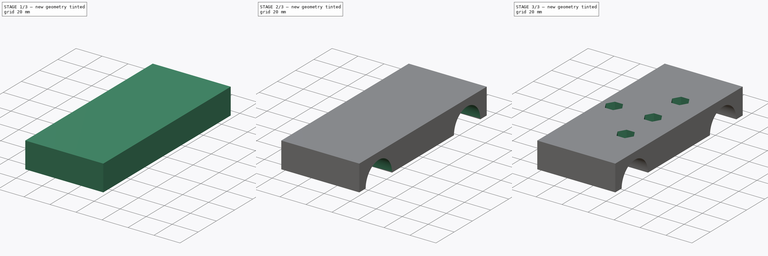
[diagram: build sequence overview — one tinted view per stage of 3, left to right]
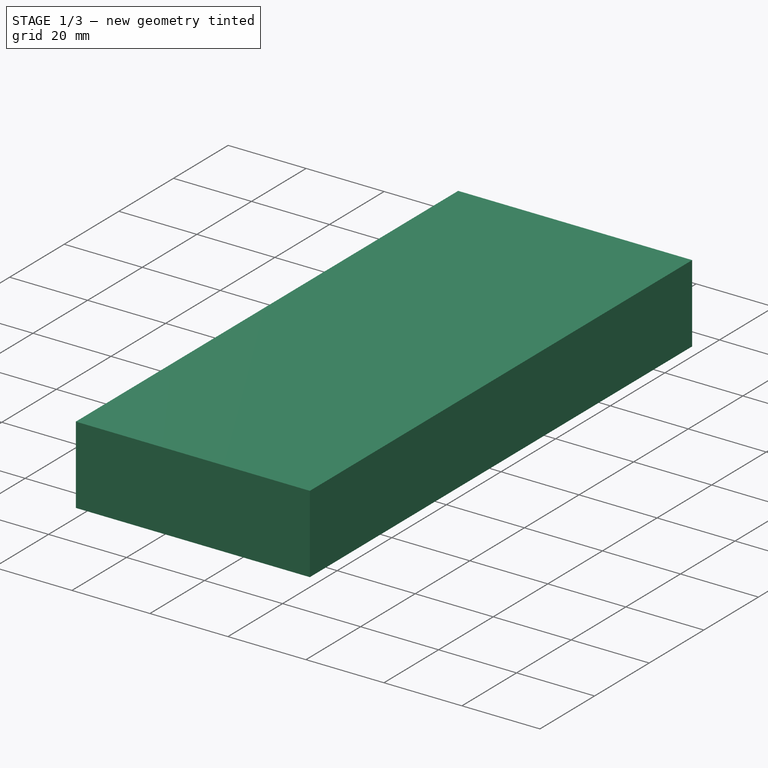
[diagram: stage 1 of 3 — iso view after this stage's code; geometry added in this stage tinted green]
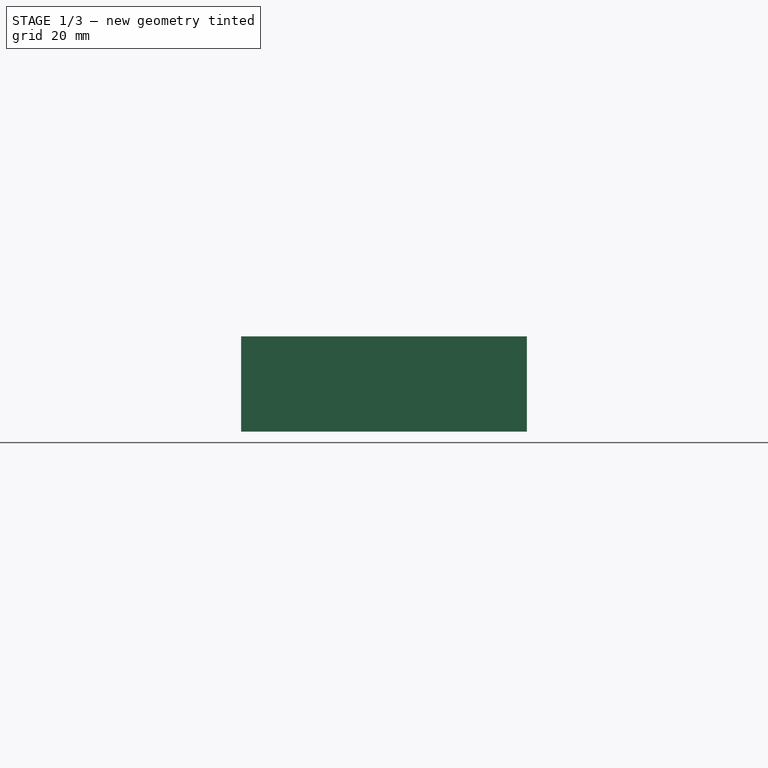
[diagram: stage 1 of 3 — front view after this stage's code; geometry added in this stage tinted green]
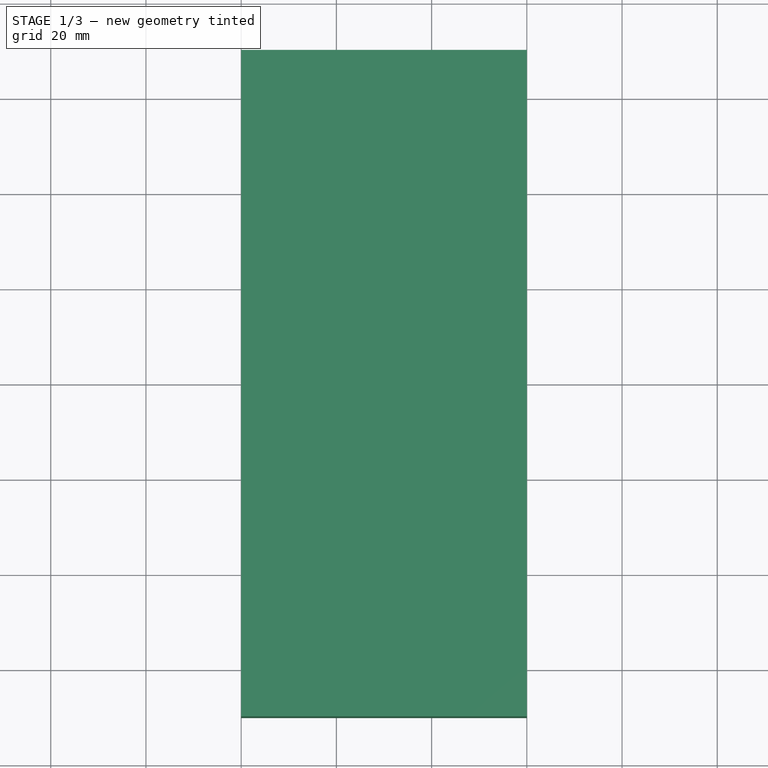
[diagram: stage 1 of 3 — top view after this stage's code; geometry added in this stage tinted green]
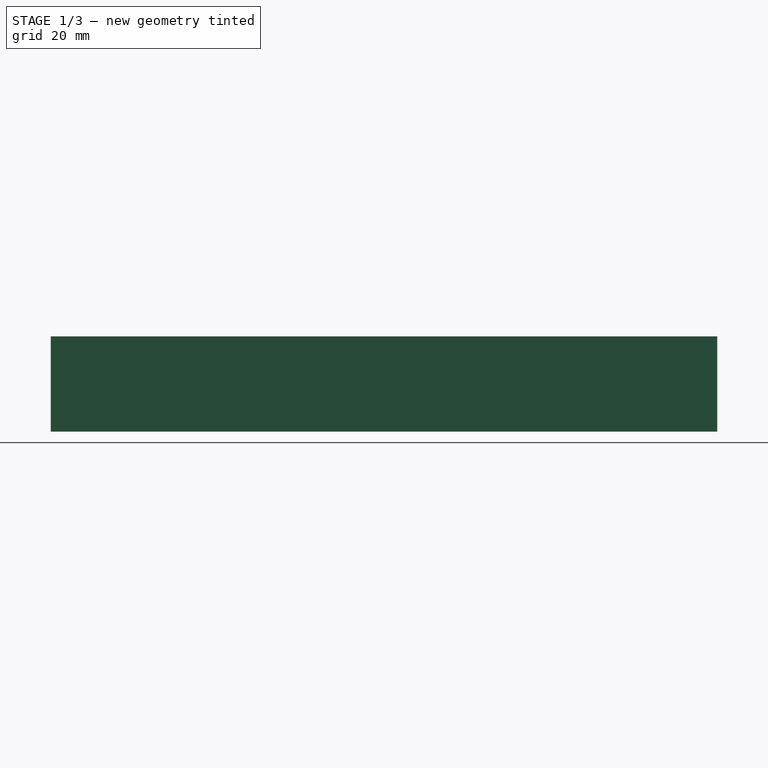
[diagram: stage 1 of 3 — right view after this stage's code; geometry added in this stage tinted green]
FCSTD DOCUMENT  (FreeCAD 0.16R6712 (Git))
Label: cnc_torch_half_carriage_v19_10
License: All rights reserved
LicenseURL: http://en.wikipedia.org/wiki/All_rights_reserved
objects: Sketcher::SketchObject×6, PartDesign::Pocket×5, Spreadsheet::Sheet×1, PartDesign::Pad×1
note: 18 computed .brp shape members not serialized (recipe doc carries the construction recipe); baked Part::Feature solids carry a one-line shape summary decoded from their .brp

FEATURE [Spreadsheet::Sheet] Spreadsheet  label="prop"
  cells = A1=carriage length; B1(car_l)=60; A2=carriage width; B2(car_w)=140; A3=carriage thickness; B3(car_t)=20; A4=carriage of center; B4(car_oc)=-10; A5=nutcatcher & bolt hole spacing; B5(nut_bolt_space)=60; A6=nutcather & bolt hole of center; B6(nut_bolt_space_oc)=10; A7=nutcatcher radius; B7(nut_rad)=6.3; A8=nutcatcher depth; B8(nut_d)=6.8; A9=bolt hole radius; B9(bolt_rad)=3.5; A11=rods & bushings spacing; B11(rod_bush_space)=97; A12=rod holes radius; B12(rod_hole_r)=14.5; A13=rod holes depth; B13(rod_hole_d)=3; A14=bushing radius; B14(bush_r)=17.1; A15=bushing length; B15(bush_l)=33
FEATURE [Sketcher::SketchObject] Sketch  label="half_carriage_block_sketch"
  expr: Constraints[13] = prop.car_oc
  expr: Constraints[10] = prop.car_l
  sketch-geometry (5):
    g0: LineSegment StartX=-20 StartY=70 StartZ=0 EndX=40 EndY=70 EndZ=0
    g1: LineSegment StartX=40 StartY=70 StartZ=0 EndX=40 EndY=-70 EndZ=0
    g2: LineSegment StartX=40 StartY=-70 StartZ=0 EndX=-20 EndY=-70 EndZ=0
    g3: LineSegment StartX=-20 StartY=-70 StartZ=0 EndX=-20 EndY=70 EndZ=0
    g4: GeomPoint [constr] X=10 Y=70 Z=0
  constraints (14):
    c: Coincident(g0,g1)
    c: Coincident(g1,g2)
    c: Coincident(g2,g3)
    c: Coincident(g3,g0)
    c: Horizontal(g0)
    c: Horizontal(g2)
    c: Vertical(g1)
    c: Vertical(g3)
    c: Symmetric(g0,g2,g-1)
    c: DistanceY(g3,g3) = 140
    c: DistanceX(g0,g0) = 60
    c: PointOnObject(g4,g0)
    c: Symmetric(g0,g0,g4)
    c: DistanceX(g4,g-1) = -10
FEATURE [PartDesign::Pad] Pad  label="half_carriage_block_pad"
  Length = 20
  Length2 = 100
  Sketch = -> Sketch
  Type = 0
  expr: Length = prop.car_t
FEATURE [Sketcher::SketchObject] Sketch001  label="rod_holes_1_sketch"
  Placement = pos=(-20,0,0) rot=(0.57735,-0.57735,-0.57735;2.0944rad)
  Support = -> Pad [Face4]
  expr: Constraints[7] = prop.rod_hole_r
  expr: Constraints[3] = prop.rod_bush_space
  sketch-geometry (3):
    g0: LineSegment [constr] StartX=-48.5 StartY=0 StartZ=0 EndX=48.5 EndY=0 EndZ=0
    g1: Circle CenterX=-48.5 CenterY=0 CenterZ=0 NormalX=0 NormalY=0 NormalZ=1 Radius=14.5
    g2: Circle CenterX=48.5 CenterY=0 CenterZ=0 NormalX=0 NormalY=0 NormalZ=1 Radius=14.5
  constraints (8):
    c: PointOnObject(g0,g-1)
    c: PointOnObject(g0,g-1)
    c: Symmetric(g0,g0,g-2)
    c: DistanceX(g0,g0) = 97
    c: Coincident(g1,g0)
    c: Coincident(g2,g0)
    c: Equal(g2,g1)
    c: Radius(g1) = 14.5
FEATURE [PartDesign::Pocket] Pocket  label="rod_holes_1_pocket"
  Length = 3
  Sketch = -> Sketch001
  Type = 0
  expr: Length = prop.rod_hole_d
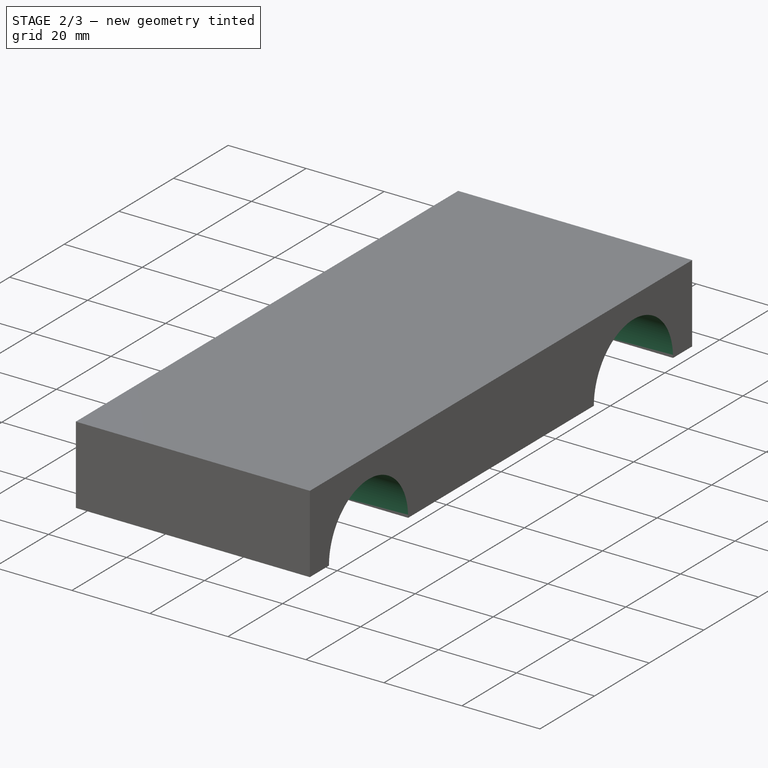
[diagram: stage 2 of 3 — iso view after this stage's code; geometry added in this stage tinted green]
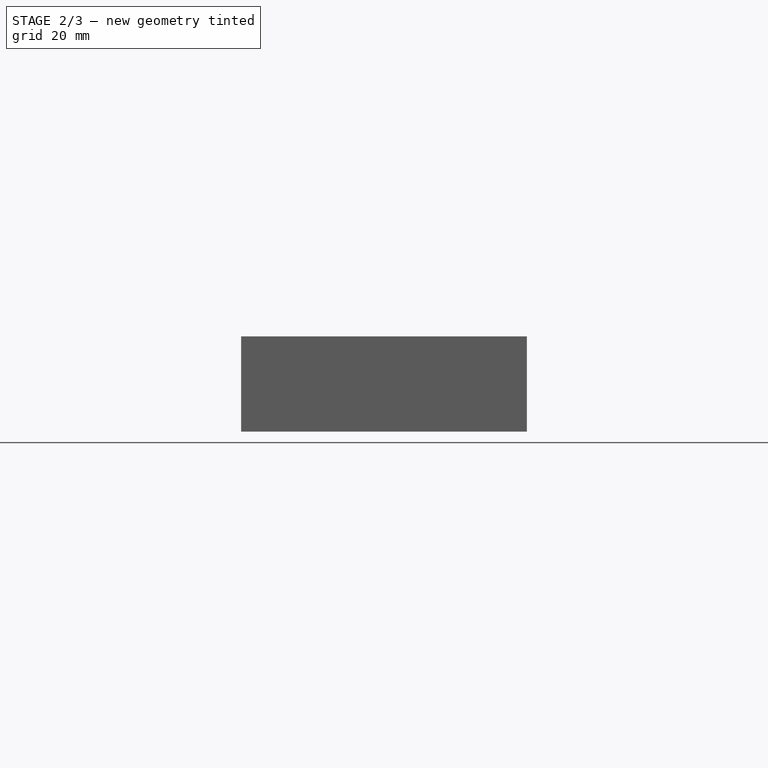
[diagram: stage 2 of 3 — front view after this stage's code; geometry added in this stage tinted green]
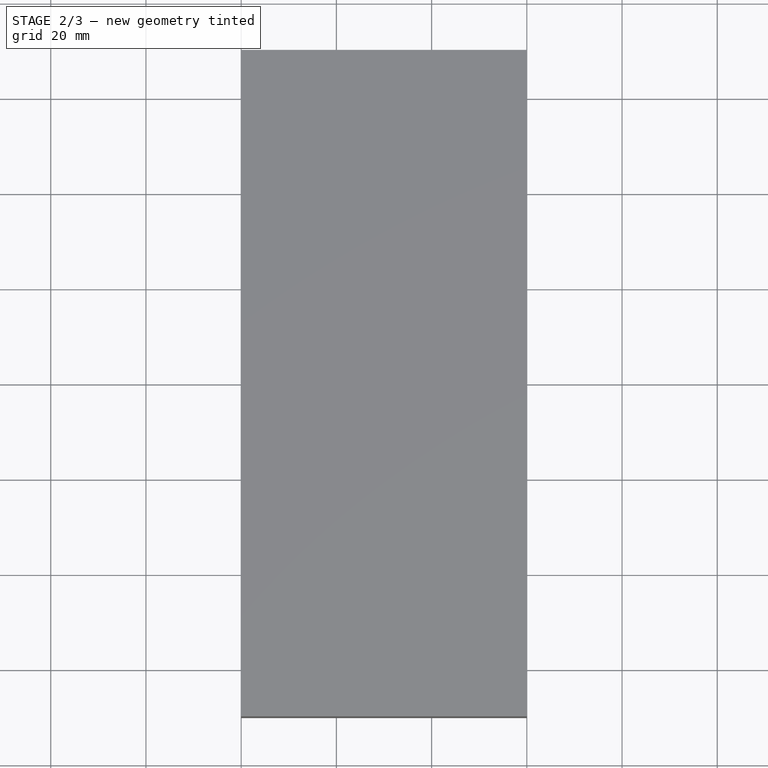
[diagram: stage 2 of 3 — top view after this stage's code; geometry added in this stage tinted green]
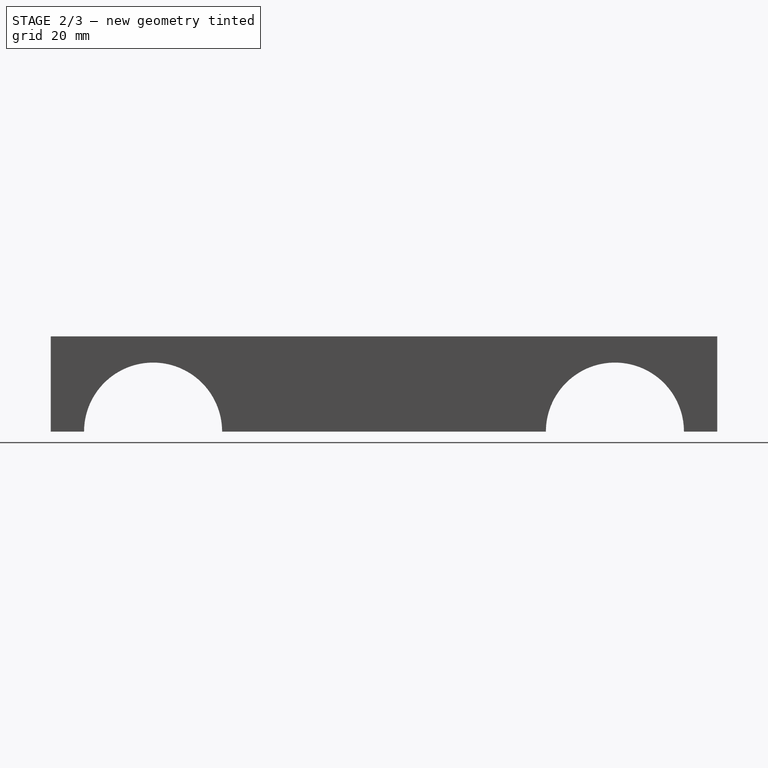
[diagram: stage 2 of 3 — right view after this stage's code; geometry added in this stage tinted green]
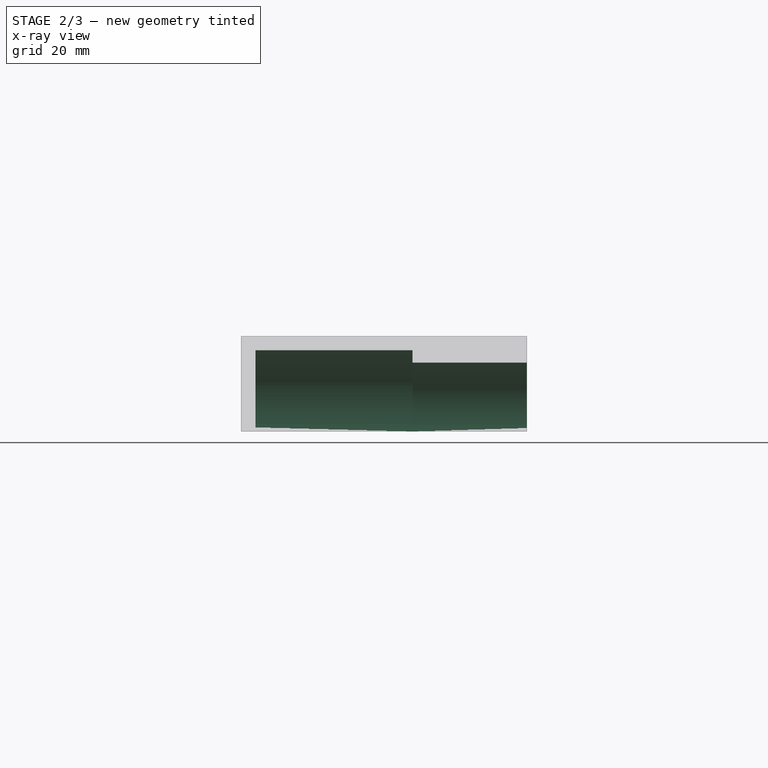
[diagram: stage 2 of 3 — x-ray composite at the front view; earlier geometry ghosted, this stage's added geometry solid]
FEATURE [Sketcher::SketchObject] Sketch002  label="bushing_sketch"
  Placement = pos=(-17,0,0) rot=(0.57735,-0.57735,-0.57735;2.0944rad)
  Support = -> Pocket [Face10]
  expr: Constraints[7] = prop.bush_r
  expr: Constraints[3] = prop.rod_bush_space
  sketch-geometry (3):
    g0: LineSegment [constr] StartX=-48.5 StartY=0 StartZ=0 EndX=48.5 EndY=0 EndZ=0
    g1: Circle CenterX=-48.5 CenterY=0 CenterZ=0 NormalX=0 NormalY=0 NormalZ=1 Radius=17.1
    g2: Circle CenterX=48.5 CenterY=0 CenterZ=0 NormalX=0 NormalY=0 NormalZ=1 Radius=17.1
  constraints (8):
    c: PointOnObject(g0,g-1)
    c: PointOnObject(g0,g-1)
    c: Symmetric(g0,g0,g-2)
    c: DistanceX(g0,g0) = 97
    c: Coincident(g1,g0)
    c: Coincident(g2,g0)
    c: Equal(g1,g2)
    c: Radius(g1) = 17.1
FEATURE [PartDesign::Pocket] Pocket001  label="bushing_pocket"
  Length = 33
  Sketch = -> Sketch002
  Type = 0
  expr: Length = prop.bush_l
FEATURE [Sketcher::SketchObject] Sketch003  label="rod_holess_2_sketch"
  Placement = pos=(16,0,0) rot=(0.57735,-0.57735,-0.57735;2.0944rad)
  Support = -> Pocket001 [Face11]
  expr: Constraints[7] = prop.rod_hole_r
  expr: Constraints[3] = prop.rod_bush_space
  sketch-geometry (3):
    g0: LineSegment [constr] StartX=-48.5 StartY=0 StartZ=0 EndX=48.5 EndY=0 EndZ=0
    g1: Circle CenterX=-48.5 CenterY=0 CenterZ=0 NormalX=0 NormalY=0 NormalZ=1 Radius=14.5
    g2: Circle CenterX=48.5 CenterY=0 CenterZ=0 NormalX=0 NormalY=0 NormalZ=1 Radius=14.5
  constraints (8):
    c: PointOnObject(g0,g-1)
    c: PointOnObject(g0,g-1)
    c: Symmetric(g0,g0,g-2)
    c: DistanceX(g0,g0) = 97
    c: Coincident(g1,g0)
    c: Coincident(g2,g0)
    c: Equal(g1,g2)
    c: Radius(g1) = 14.5
FEATURE [PartDesign::Pocket] Pocket002  label="rod_holes_2_pocket"
  Length = 5
  Sketch = -> Sketch003
  Type = 1
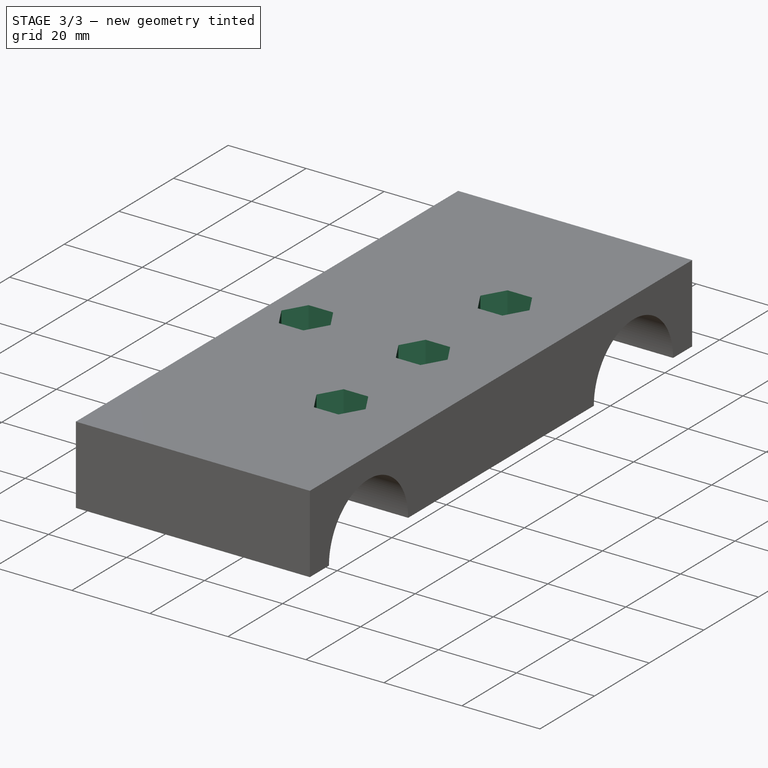
[diagram: stage 3 of 3 — iso view after this stage's code; geometry added in this stage tinted green]
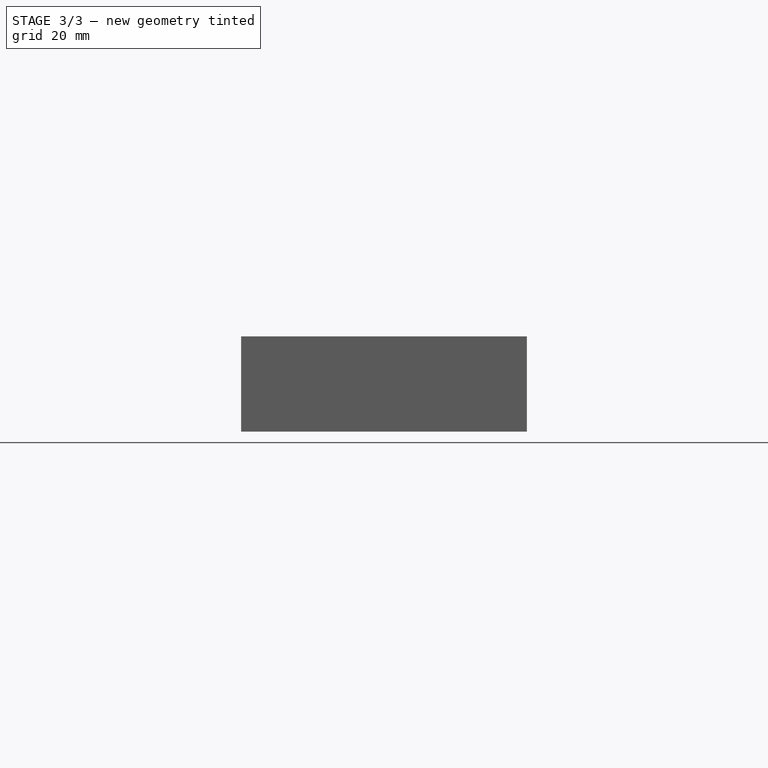
[diagram: stage 3 of 3 — front view after this stage's code; geometry added in this stage tinted green]
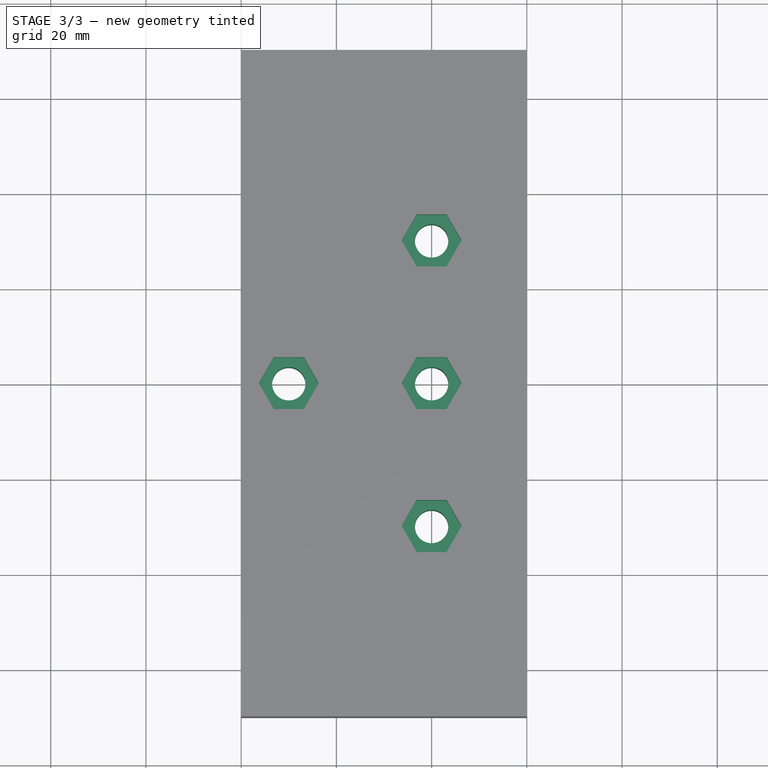
[diagram: stage 3 of 3 — top view after this stage's code; geometry added in this stage tinted green]
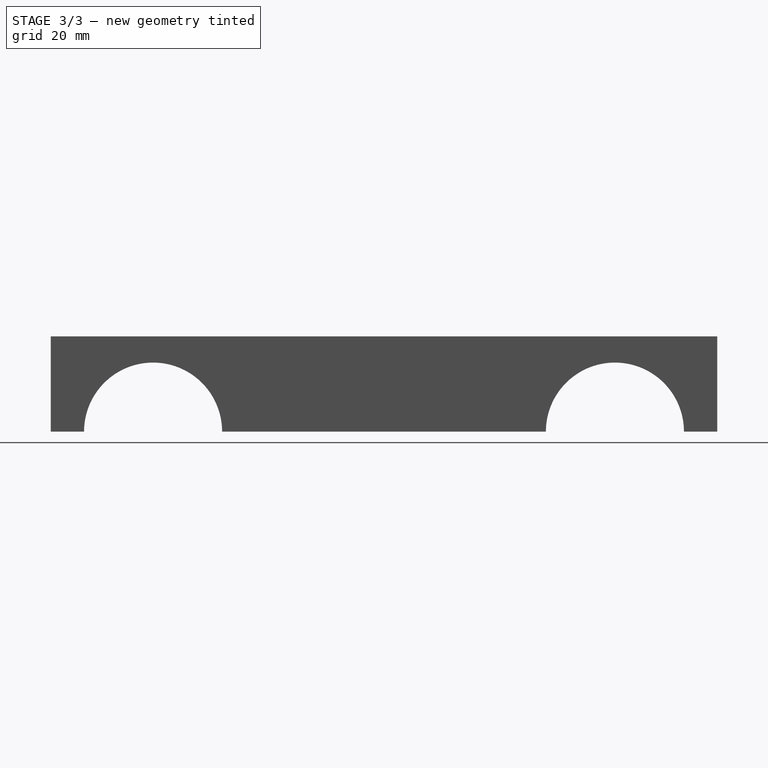
[diagram: stage 3 of 3 — right view after this stage's code; geometry added in this stage tinted green]
FEATURE [Sketcher::SketchObject] Sketch004  label="nutcatchers_sketch"
  Placement = pos=(0,0,20) rot=(0,0,1;0rad)
  Support = -> Pocket002 [Face5]
  expr: Constraints[156] = prop.nut_rad
  expr: Constraints[29] = prop.nut_bolt_space
  expr: Constraints[73] = prop.nut_bolt_space_oc
  sketch-geometry (54):
    g0: LineSegment [constr] StartX=-40 StartY=30 StartZ=0 EndX=20 EndY=30 EndZ=0
    g1: LineSegment [constr] StartX=20 StartY=30 StartZ=0 EndX=20 EndY=-30 EndZ=0
    g2: LineSegment [constr] StartX=20 StartY=-30 StartZ=0 EndX=-40 EndY=-30 EndZ=0
    g3: LineSegment [constr] StartX=-40 StartY=-30 StartZ=0 EndX=-40 EndY=30 EndZ=0
    g4: LineSegment StartX=-36.85 StartY=-5.45596 StartZ=0 EndX=-33.7 EndY=0 EndZ=0
    g5: LineSegment StartX=-33.7 StartY=0 StartZ=0 EndX=-36.85 EndY=5.45596 EndZ=0
    g6: LineSegment StartX=-36.85 StartY=5.45596 StartZ=0 EndX=-43.15 EndY=5.45596 EndZ=0
    g7: LineSegment StartX=-43.15 StartY=5.45596 StartZ=0 EndX=-46.3 EndY=0 EndZ=0
    g8: LineSegment StartX=-46.3 StartY=0 StartZ=0 EndX=-43.15 EndY=-5.45596 EndZ=0
    g9: LineSegment StartX=-43.15 StartY=-5.45596 StartZ=0 EndX=-36.85 EndY=-5.45596 EndZ=0
    g10: Circle [constr] CenterX=-40 CenterY=0 CenterZ=0 NormalX=0 NormalY=0 NormalZ=1 Radius=6.3
    g11: LineSegment StartX=23.15 StartY=5.45596 StartZ=0 EndX=16.85 EndY=5.45596 EndZ=0
    g12: LineSegment StartX=16.85 StartY=5.45596 StartZ=0 EndX=13.7 EndY=0 EndZ=0
    g13: LineSegment StartX=13.7 StartY=0 StartZ=0 EndX=16.85 EndY=-5.45596 EndZ=0
    g14: LineSegment StartX=16.85 StartY=-5.45596 StartZ=0 EndX=23.15 EndY=-5.45596 EndZ=0
    g15: LineSegment StartX=23.15 StartY=-5.45596 StartZ=0 EndX=26.3 EndY=0 EndZ=0
    g16: LineSegment StartX=26.3 StartY=0 StartZ=0 EndX=23.15 EndY=5.45596 EndZ=0
    g17: Circle [constr] CenterX=20 CenterY=0 CenterZ=0 NormalX=0 NormalY=0 NormalZ=1 Radius=6.3
    g18: LineSegment [constr] StartX=-40 StartY=0 StartZ=0 EndX=20 EndY=0 EndZ=0
    g19: LineSegment StartX=-3.7 StartY=0 StartZ=0 EndX=-6.85 EndY=5.45596 EndZ=0
    g20: LineSegment StartX=-6.85 StartY=5.45596 StartZ=0 EndX=-13.15 EndY=5.45596 EndZ=0
    g21: LineSegment StartX=-13.15 StartY=5.45596 StartZ=0 EndX=-16.3 EndY=0 EndZ=0
    g22: LineSegment StartX=-16.3 StartY=0 StartZ=0 EndX=-13.15 EndY=-5.45596 EndZ=0
    g23: LineSegment StartX=-13.15 StartY=-5.45596 StartZ=0 EndX=-6.85 EndY=-5.45596 EndZ=0
    g24: LineSegment StartX=-6.85 StartY=-5.45596 StartZ=0 EndX=-3.7 EndY=0 EndZ=0
    g25: Circle [constr] CenterX=-10 CenterY=0 CenterZ=0 NormalX=0 NormalY=0 NormalZ=1 Radius=6.3
    g26: LineSegment StartX=-33.7 StartY=30 StartZ=0 EndX=-36.85 EndY=35.456 EndZ=0
    g27: LineSegment StartX=-36.85 StartY=35.456 StartZ=0 EndX=-43.15 EndY=35.456 EndZ=0
    g28: LineSegment StartX=-43.15 StartY=35.456 StartZ=0 EndX=-46.3 EndY=30 EndZ=0
    g29: LineSegment StartX=-46.3 StartY=30 StartZ=0 EndX=-43.15 EndY=24.544 EndZ=0
    g30: LineSegment StartX=-43.15 StartY=24.544 StartZ=0 EndX=-36.85 EndY=24.544 EndZ=0
    g31: LineSegment StartX=-36.85 StartY=24.544 StartZ=0 EndX=-33.7 EndY=30 EndZ=0
    g32: Circle [constr] CenterX=-40 CenterY=30 CenterZ=0 NormalX=0 NormalY=0 NormalZ=1 Radius=6.3
    g33: LineSegment StartX=13.7 StartY=30 StartZ=0 EndX=16.85 EndY=24.544 EndZ=0
    g34: LineSegment StartX=16.85 StartY=24.544 StartZ=0 EndX=23.15 EndY=24.544 EndZ=0
    g35: LineSegment StartX=23.15 StartY=24.544 StartZ=0 EndX=26.3 EndY=30 EndZ=0
    g36: LineSegment StartX=26.3 StartY=30 StartZ=0 EndX=23.15 EndY=35.456 EndZ=0
    g37: LineSegment StartX=23.15 StartY=35.456 StartZ=0 EndX=16.85 EndY=35.456 EndZ=0
    g38: LineSegment StartX=16.85 StartY=35.456 StartZ=0 EndX=13.7 EndY=30 EndZ=0
    g39: Circle [constr] CenterX=20 CenterY=30 CenterZ=0 NormalX=0 NormalY=0 NormalZ=1 Radius=6.3
    g40: LineSegment StartX=-33.7 StartY=-30 StartZ=0 EndX=-36.85 EndY=-24.544 EndZ=0
    g41: LineSegment StartX=-36.85 StartY=-24.544 StartZ=0 EndX=-43.15 EndY=-24.544 EndZ=0
    g42: LineSegment StartX=-43.15 StartY=-24.544 StartZ=0 EndX=-46.3 EndY=-30 EndZ=0
    g43: LineSegment StartX=-46.3 StartY=-30 StartZ=0 EndX=-43.15 EndY=-35.456 EndZ=0
    g44: LineSegment StartX=-43.15 StartY=-35.456 StartZ=0 EndX=-36.85 EndY=-35.456 EndZ=0
    g45: LineSegment StartX=-36.85 StartY=-35.456 StartZ=0 EndX=-33.7 EndY=-30 EndZ=0
    g46: Circle [constr] CenterX=-40 CenterY=-30 CenterZ=0 NormalX=0 NormalY=0 NormalZ=1 Radius=6.3
    g47: LineSegment StartX=13.7 StartY=-30 StartZ=0 EndX=16.85 EndY=-35.456 EndZ=0
    g48: LineSegment StartX=16.85 StartY=-35.456 StartZ=0 EndX=23.15 EndY=-35.456 EndZ=0
    g49: LineSegment StartX=23.15 StartY=-35.456 StartZ=0 EndX=26.3 EndY=-30 EndZ=0
    g50: LineSegment StartX=26.3 StartY=-30 StartZ=0 EndX=23.15 EndY=-24.544 EndZ=0
    g51: LineSegment StartX=23.15 StartY=-24.544 StartZ=0 EndX=16.85 EndY=-24.544 EndZ=0
    g52: LineSegment StartX=16.85 StartY=-24.544 StartZ=0 EndX=13.7 EndY=-30 EndZ=0
    g53: Circle [constr] CenterX=20 CenterY=-30 CenterZ=0 NormalX=0 NormalY=0 NormalZ=1 Radius=6.3
  constraints (129):
    c: Coincident(g0,g1)
    c: Coincident(g1,g2)
    c: Coincident(g2,g3)
    c: Coincident(g3,g0)
    c: Horizontal(g0)
    c: Horizontal(g2)
    c: Vertical(g1)
    c: Vertical(g3)
    c: Symmetric(g2,g0,g-1)
    c: Coincident(g4,g5)
    c: Coincident(g5,g6)
    c: Coincident(g6,g7)
    c: Coincident(g7,g8)
    c: Coincident(g8,g9)
    c: Coincident(g9,g4)
    c: Equal(g4, g5-g9) x5
    c: PointOnObject(g4,g10)
    c: PointOnObject(g5,g10)
    c: PointOnObject(g6,g10)
    c: PointOnObject(g7,g10)
    c: PointOnObject(g8,g10)
    c: PointOnObject(g9,g10)
    c: PointOnObject(g10,g3)
    c: Horizontal(g9)
    c: Equal(g3,g0)
    c: DistanceY(g3,g3) = 60
    c: PointOnObject(g10,g-1)
    c: Coincident(g11,g12)
    c: Coincident(g12,g13)
    c: Coincident(g13,g14)
    c: Coincident(g14,g15)
    c: Coincident(g15,g16)
    c: Coincident(g16,g11)
    c: Equal(g11, g12-g16) x5
    c: PointOnObject(g11,g17)
    c: PointOnObject(g12,g17)
    c: PointOnObject(g13,g17)
    c: PointOnObject(g14,g17)
    c: PointOnObject(g15,g17)
    c: PointOnObject(g16,g17)
    c: PointOnObject(g17,g1)
    c: Horizontal(g11)
    c: PointOnObject(g17,g-1)
    c: Coincident(g18,g10)
    c: Coincident(g18,g17)
    c: Coincident(g19,g20)
    c: Coincident(g20,g21)
    c: Coincident(g21,g22)
    c: Coincident(g22,g23)
    c: Coincident(g23,g24)
    c: Coincident(g24,g19)
    c: Equal(g19, g20-g24) x5
    c: PointOnObject(g19,g25)
    c: PointOnObject(g20,g25)
    c: PointOnObject(g21,g25)
    c: PointOnObject(g22,g25)
    c: PointOnObject(g23,g25)
    c: PointOnObject(g24,g25)
    c: PointOnObject(g25,g18)
    c: Horizontal(g20)
    c: Symmetric(g10,g17,g25)
    c: DistanceX(g25,g-1) = 10
    c: Coincident(g26,g27)
    c: Coincident(g27,g28)
    c: Coincident(g28,g29)
    c: Coincident(g29,g30)
    c: Coincident(g30,g31)
    c: Coincident(g31,g26)
    c: Equal(g26, g27-g31) x5
    c: PointOnObject(g26,g32)
    c: PointOnObject(g27,g32)
    c: PointOnObject(g28,g32)
    c: PointOnObject(g29,g32)
    c: PointOnObject(g30,g32)
    c: PointOnObject(g31,g32)
    c: Coincident(g32,g0)
    c: Coincident(g33,g34)
    c: Coincident(g34,g35)
    c: Coincident(g35,g36)
    c: Coincident(g36,g37)
    c: Coincident(g37,g38)
    c: Coincident(g38,g33)
    c: Equal(g33, g34-g38) x5
    c: PointOnObject(g33,g39)
    c: PointOnObject(g34,g39)
    c: PointOnObject(g35,g39)
    c: PointOnObject(g36,g39)
    c: PointOnObject(g37,g39)
    c: PointOnObject(g38,g39)
    c: Coincident(g39,g0)
    c: PointOnObject(g38,g0)
    c: Coincident(g40,g41)
    c: Coincident(g41,g42)
    c: Coincident(g42,g43)
    c: Coincident(g43,g44)
    c: Coincident(g44,g45)
    c: Coincident(g45,g40)
    c: Equal(g40, g41-g45) x5
    c: PointOnObject(g40,g46)
    c: PointOnObject(g41,g46)
    c: PointOnObject(g42,g46)
    c: PointOnObject(g43,g46)
    c: PointOnObject(g44,g46)
    c: PointOnObject(g45,g46)
    c: Coincident(g46,g2)
    c: Horizontal(g41)
    c: Coincident(g47,g48)
    c: Coincident(g48,g49)
    c: Coincident(g49,g50)
    c: Coincident(g50,g51)
    c: Coincident(g51,g52)
    c: Coincident(g52,g47)
    c: Equal(g47, g48-g52) x5
    c: PointOnObject(g47,g53)
    c: PointOnObject(g48,g53)
    c: PointOnObject(g49,g53)
    c: PointOnObject(g50,g53)
    c: PointOnObject(g51,g53)
    c: PointOnObject(g52,g53)
    c: Coincident(g53,g1)
    c: Horizontal(g51)
    c: Equal(g32,g39)
    c: Equal(g39,g17)
    c: Equal(g17,g10)
    c: Equal(g10,g46)
    c: Equal(g46,g53)
    c: Equal(g53,g25)
    c: Horizontal(g27)
    c: Radius(g32) = 6.3
FEATURE [PartDesign::Pocket] Pocket003  label="nutcatchers_pocket"
  Length = 6.8
  Sketch = -> Sketch004
  Type = 0
  expr: Length = prop.nut_d
FEATURE [Sketcher::SketchObject] Sketch005  label="bolt_holes_sketch"
  Placement = pos=(0,0,13.2) rot=(0,0,1;0rad)
  Support = -> Pocket003 [Face43]
  expr: Constraints[24] = prop.nut_bolt_space_oc
  expr: Constraints[10] = prop.nut_bolt_space
  sketch-geometry (12):
    g0: LineSegment [constr] StartX=-40 StartY=30 StartZ=0 EndX=20 EndY=30 EndZ=0
    g1: LineSegment [constr] StartX=20 StartY=30 StartZ=0 EndX=20 EndY=-30 EndZ=0
    g2: LineSegment [constr] StartX=20 StartY=-30 StartZ=0 EndX=-40 EndY=-30 EndZ=0
    g3: LineSegment [constr] StartX=-40 StartY=-30 StartZ=0 EndX=-40 EndY=30 EndZ=0
    g4: Circle CenterX=-40 CenterY=30 CenterZ=0 NormalX=0 NormalY=0 NormalZ=1 Radius=3.5
    g5: Circle CenterX=20 CenterY=30 CenterZ=0 NormalX=0 NormalY=0 NormalZ=1 Radius=3.5
    g6: Circle CenterX=20 CenterY=-30 CenterZ=0 NormalX=0 NormalY=0 NormalZ=1 Radius=3.5
    g7: Circle CenterX=-40 CenterY=-30 CenterZ=0 NormalX=0 NormalY=0 NormalZ=1 Radius=3.5
    g8: Circle CenterX=-40 CenterY=0 CenterZ=0 NormalX=0 NormalY=0 NormalZ=1 Radius=3.5
    g9: Circle CenterX=20 CenterY=0 CenterZ=0 NormalX=0 NormalY=0 NormalZ=1 Radius=3.5
    g10: GeomPoint [constr] X=-10 Y=30 Z=0
    g11: Circle CenterX=-10 CenterY=0 CenterZ=0 NormalX=0 NormalY=0 NormalZ=1 Radius=3.5
  constraints (31):
    c: Coincident(g0,g1)
    c: Coincident(g1,g2)
    c: Coincident(g2,g3)
    c: Coincident(g3,g0)
    c: Horizontal(g0)
    c: Horizontal(g2)
    c: Vertical(g1)
    c: Vertical(g3)
    c: Symmetric(g0,g2,g-1)
    c: Equal(g3,g0)
    c: DistanceY(g3,g3) = 60
    c: Coincident(g4,g0)
    c: Coincident(g5,g0)
    c: Coincident(g6,g1)
    c: Coincident(g7,g2)
    c: PointOnObject(g8,g3)
    c: PointOnObject(g8,g-1)
    c: PointOnObject(g9,g1)
    c: PointOnObject(g9,g-1)
    c: Equal(g6,g9)
    c: Equal(g8,g4)
    c: Radius(g4) = 3.5
    c: PointOnObject(g10,g0)
    c: Symmetric(g0,g0,g10)
    c: DistanceX(g10,g-1) = 10
    c: PointOnObject(g11,g-1)
    c: Symmetric(g8,g9,g11)
    c: Equal(g8,g11)
    c: Equal(g9,g4)
    c: Equal(g7,g4)
    c: Equal(g5,g4)
FEATURE [PartDesign::Pocket] Pocket004  label="bolt_holes_pocket"
  Length = 5
  Sketch = -> Sketch005
  Type = 1
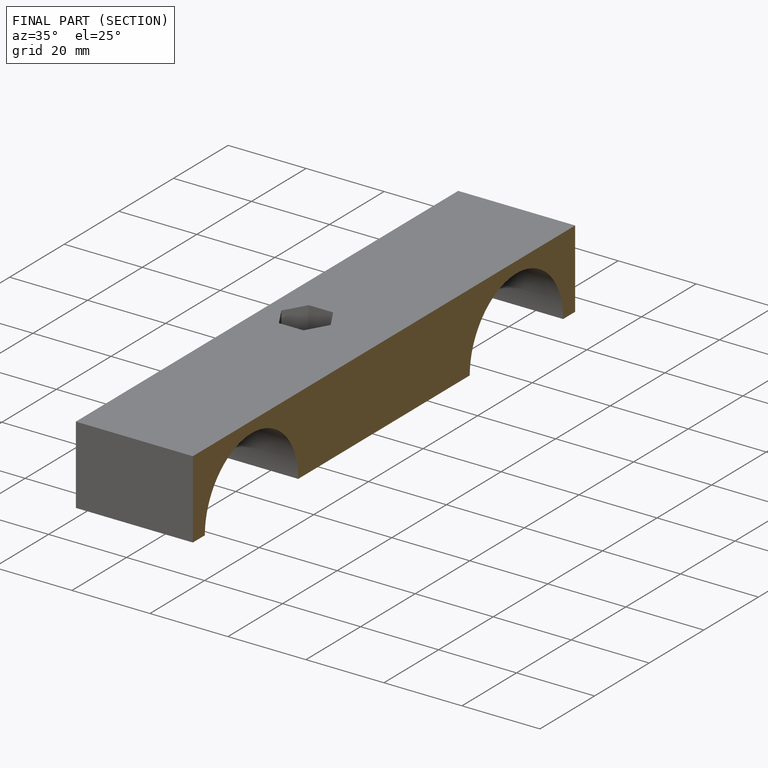
[diagram: finished part — half-section view (interior)]
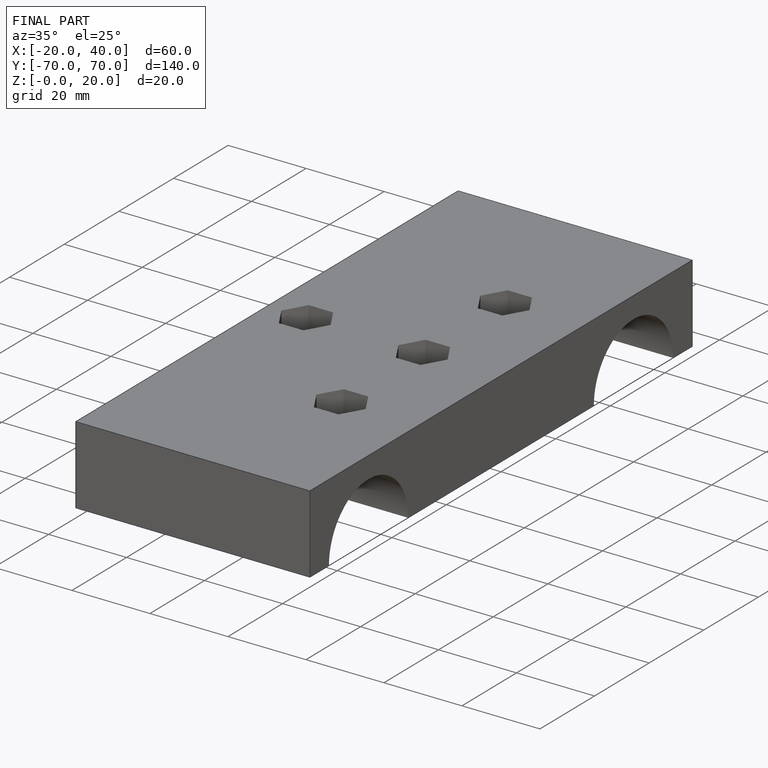
[diagram: finished part — iso view with bounding-box wireframe]
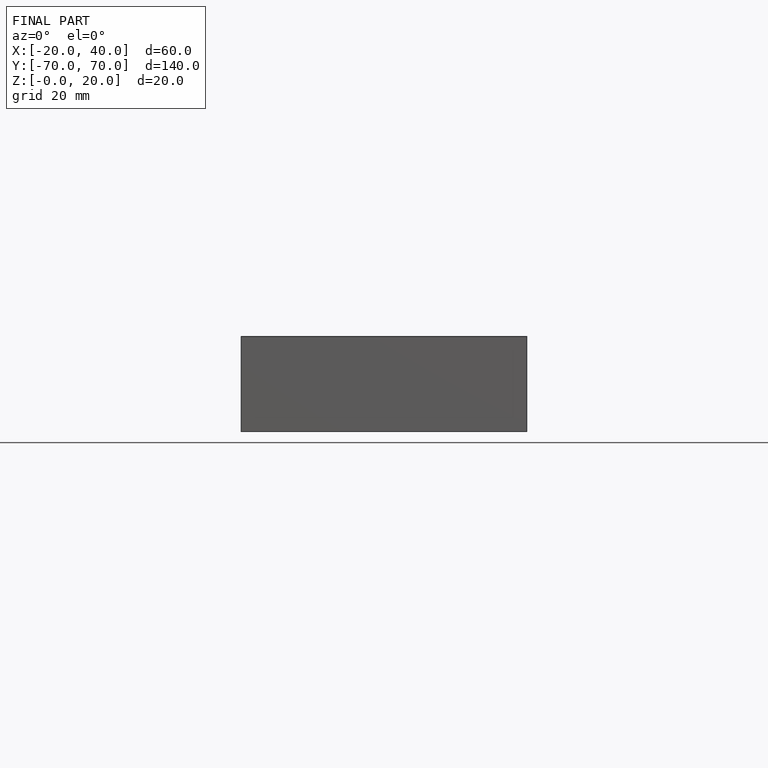
[diagram: finished part — front view with bounding-box wireframe]
